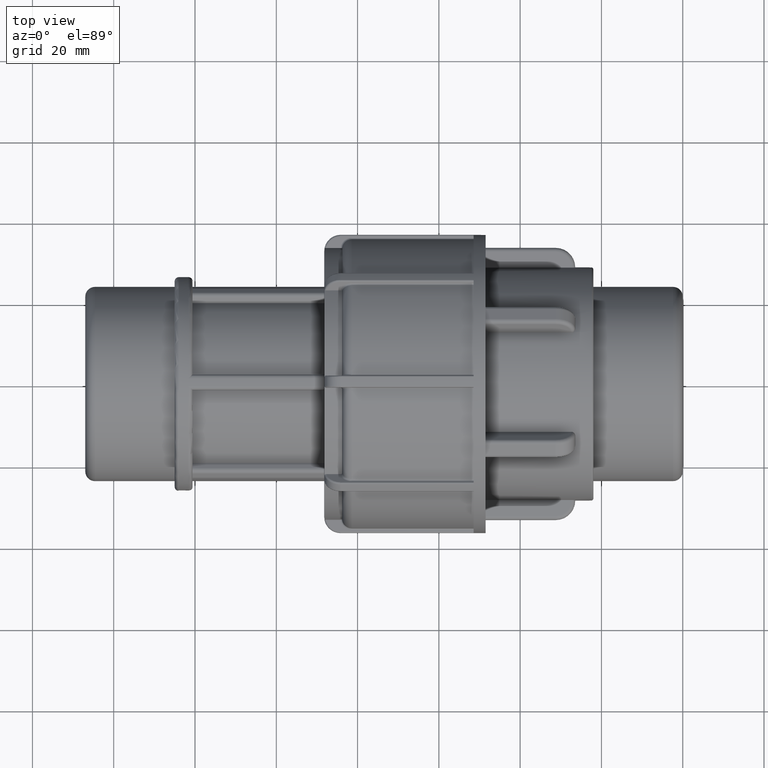
[diagram: clean part render]
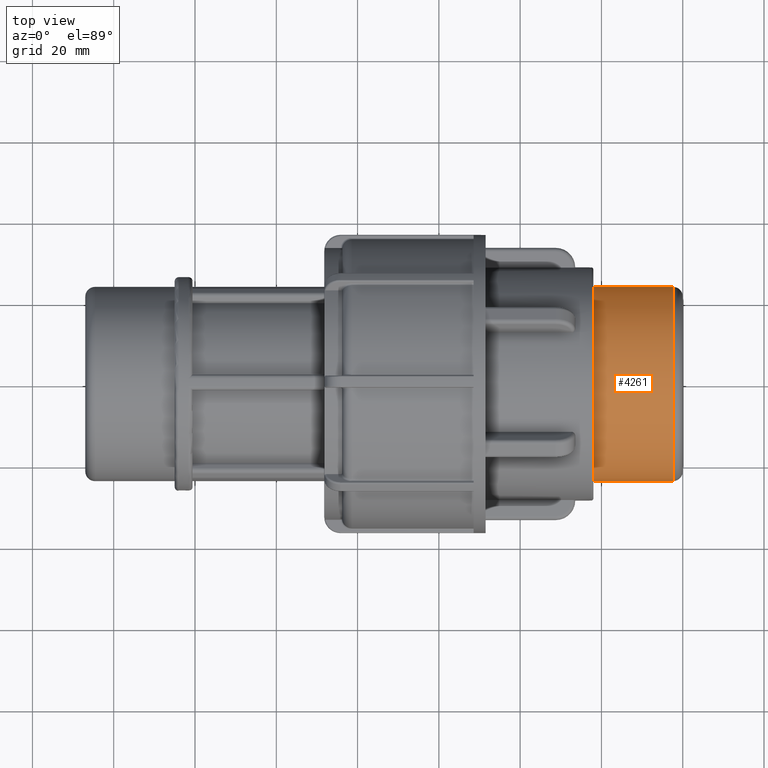
[diagram: same view with one face highlighted and labeled with its STEP entity id]
A machine part, top view. The second image highlights one B-rep face of the part: STEP entity #4261.
In plain terms, the highlighted cylindrical surface (bore or boss wall) has radius 23.9015 mm, axis along (1, 0, 0).
Its self-contained STEP definition (entity closure, byte-faithful):
#59=FACE_BOUND('',#681,.T.);
#418=FACE_OUTER_BOUND('',#680,.T.);
#680=EDGE_LOOP('',(#3893));
#681=EDGE_LOOP('',(#3894));
#1412=CIRCLE('',#4428,23.9015);
#1588=CIRCLE('',#4738,23.9015);
#1711=VERTEX_POINT('',#6469);
#1994=VERTEX_POINT('',#8872);
#2189=EDGE_CURVE('',#1711,#1711,#1412,.T.);
#2631=EDGE_CURVE('',#1994,#1994,#1588,.T.);
#3893=ORIENTED_EDGE('',*,*,#2189,.T.);
#3894=ORIENTED_EDGE('',*,*,#2631,.F.);
#4015=CYLINDRICAL_SURFACE('',#4740,23.9015);
#4261=ADVANCED_FACE('',(#418,#59),#4015,.T.);
#4428=AXIS2_PLACEMENT_3D('',#6470,#5164,#5165);
#4738=AXIS2_PLACEMENT_3D('',#8873,#5950,#5951);
#4740=AXIS2_PLACEMENT_3D('',#8876,#5954,#5955);
#5164=DIRECTION('center_axis',(1.,0.,0.));
#5165=DIRECTION('ref_axis',(0.,0.,-1.));
#5950=DIRECTION('center_axis',(1.,0.,0.));
#5951=DIRECTION('ref_axis',(0.,-1.,1.83697019872103E-16));
#5954=DIRECTION('center_axis',(1.,0.,0.));
#5955=DIRECTION('ref_axis',(0.,1.,0.));
#6469=CARTESIAN_POINT('',(-22.,23.9015,0.));
#6470=CARTESIAN_POINT('Origin',(-22.,0.,0.));
#8872=CARTESIAN_POINT('',(-2.39015,23.9015,-1.46354477349102E-15));
#8873=CARTESIAN_POINT('Origin',(-2.39015,0.,0.));
#8876=CARTESIAN_POINT('Origin',(-11.,0.,0.));